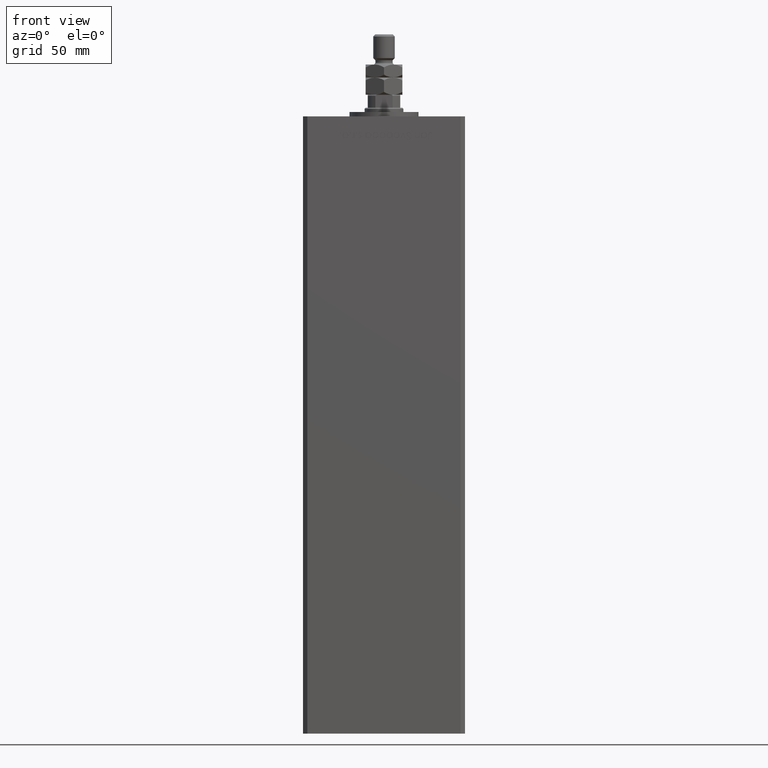
[diagram: clean part render]
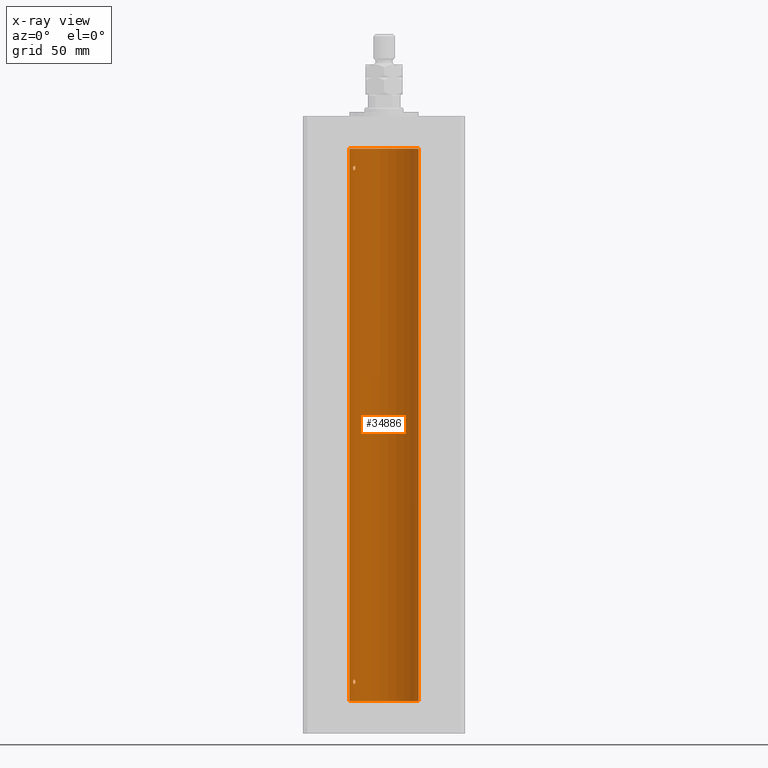
[diagram: x-ray — body ghosted, one internal face saturated and labeled with its STEP entity id]
A machine part, front view, then the same camera in x-ray: the body is ghosted and one INTERNAL B-rep face — a face not visible from any outside direction — is saturated and labeled: STEP entity #34886.
In plain terms, the highlighted cylindrical surface (edge-blend (fillet) strip) has radius 16 mm, axis along (-0, -0, -1).
Its self-contained STEP definition (entity closure, byte-faithful):
#182 = CARTESIAN_POINT ( 'NONE',  ( -13.49759407097374897, 8.592283911330223845, 8.184099152127670251 ) ) ;
#1696 = CARTESIAN_POINT ( 'NONE',  ( -13.98699950016872151, 7.770591669637114229, 246.0184768166483877 ) ) ;
#2011 = CARTESIAN_POINT ( 'NONE',  ( -13.37741691572085934, 8.778212469423014142, 9.640882860227099727 ) ) ;
#2769 = CARTESIAN_POINT ( 'NONE',  ( -13.22875655532295625, 8.999999999999994671, 246.9295656223615936 ) ) ;
#2871 = AXIS2_PLACEMENT_3D ( 'NONE', #30354, #42059, #17594 ) ;
#3478 = VECTOR ( 'NONE', #41444, 1000.000000000000000 ) ;
#3729 = CARTESIAN_POINT ( 'NONE',  ( -14.31660136508399184, 7.144151923086058176, 8.464621795444474017 ) ) ;
#3745 = CARTESIAN_POINT ( 'NONE',  ( -13.24976519864029179, 8.969293778684573226, 247.2815352263351372 ) ) ;
#3988 = CARTESIAN_POINT ( 'NONE',  ( -14.38749456993815556, 6.999999999999997335, 8.857147409635411250 ) ) ;
#4207 = CARTESIAN_POINT ( 'NONE',  ( 16.00000000000000000, 1.959434878635765131E-15, 0.000000000000000000 ) ) ;
#4257 = CARTESIAN_POINT ( 'NONE',  ( -13.77582987033441064, 8.139210687602712824, 8.002110545841816247 ) ) ;
#4402 = B_SPLINE_CURVE_WITH_KNOTS ( 'NONE', 3,
 ( #33077, #24924, #3745, #8099, #33338, #20317, #21370, #41775, #33598, #29260, #42041, #50197, #12963, #53455, #28736, #25458 ),
 .UNSPECIFIED., .F., .F.,
 ( 4, 2, 2, 2, 2, 2, 2, 4 ),
 ( 0.003377672193071779884, 0.003799209865779855366, 0.004220747538487930849, 0.005063822883904134722, 0.005485360556612237093, 0.005906898229320339463, 0.006328435902028442701, 0.006749973574736545072 ),
 .UNSPECIFIED. ) ;
#5250 = VERTEX_POINT ( 'NONE', #19988 ) ;
#5413 = DIRECTION ( 'NONE',  ( 1.000000000000000000, 0.000000000000000000, 0.000000000000000000 ) ) ;
#5865 = CARTESIAN_POINT ( 'NONE',  ( -13.23400746336172951, 8.992294519018086518, 8.857814559023015732 ) ) ;
#6093 = CARTESIAN_POINT ( 'NONE',  ( -13.32457971225032445, 8.857769707964649797, 9.531999662746555302 ) ) ;
#7817 = CARTESIAN_POINT ( 'NONE',  ( -14.38749456993815912, 6.999999999999997335, 9.000000000000000000 ) ) ;
#8099 = CARTESIAN_POINT ( 'NONE',  ( -13.32457971225032622, 8.857769707964648020, 247.5319996627465002 ) ) ;
#8840 = CARTESIAN_POINT ( 'NONE',  ( 16.00000000000000000, 1.959434878635765131E-15, 256.0000000000000000 ) ) ;
#9311 = EDGE_CURVE ( 'NONE', #48910, #5250, #48747, .T. ) ;
#9589 = CARTESIAN_POINT ( 'NONE',  ( -14.38749456993815912, 6.999999999999998224, 247.0000000000000000 ) ) ;
#9936 = CARTESIAN_POINT ( 'NONE',  ( -13.22875655532295447, 8.999999999999996447, 9.000000000000000000 ) ) ;
#10160 = FACE_OUTER_BOUND ( 'NONE', #38788, .T. ) ;
#11259 = VERTEX_POINT ( 'NONE', #4207 ) ;
#11348 = ORIENTED_EDGE ( 'NONE', *, *, #27109, .F. ) ;
#11718 = CARTESIAN_POINT ( 'NONE',  ( -13.56386909142669772, 8.487613976483636691, 246.1182242979961359 ) ) ;
#12125 = VERTEX_POINT ( 'NONE', #53708 ) ;
#12152 = CARTESIAN_POINT ( 'NONE',  ( -14.11621438951177332, 7.533308783217010252, 8.106571071839512754 ) ) ;
#12963 = CARTESIAN_POINT ( 'NONE',  ( -14.31650799088418147, 7.144337649771908438, 247.5355226273736662 ) ) ;
#13121 = AXIS2_PLACEMENT_3D ( 'NONE', #17774, #43328, #42526 ) ;
#13482 = CARTESIAN_POINT ( 'NONE',  ( -13.22875655532295092, 8.999999999999994671, 8.929565622361636201 ) ) ;
#14166 = CIRCLE ( 'NONE', #2871, 16.00000000000000000 ) ;
#14236 = CARTESIAN_POINT ( 'NONE',  ( -13.98878315975729159, 7.767347947480346626, 9.980546143261280534 ) ) ;
#14782 = CARTESIAN_POINT ( 'NONE',  ( -14.17576283486774535, 7.420212263225985261, 9.825253034304354927 ) ) ;
#15008 = CARTESIAN_POINT ( 'NONE',  ( -13.23400746336172240, 8.992294519018086518, 246.8578145590230406 ) ) ;
#15455 = ORIENTED_EDGE ( 'NONE', *, *, #17090, .F. ) ;
#15545 = CARTESIAN_POINT ( 'NONE',  ( -13.37674940693422876, 8.779234808442867077, 246.3602441571267718 ) ) ;
#16752 = CARTESIAN_POINT ( 'NONE',  ( -13.37674940693422521, 8.779234808442870630, 8.360244157126784259 ) ) ;
#17090 = EDGE_CURVE ( 'NONE', #5250, #48910, #20294, .T. ) ;
#17594 = DIRECTION ( 'NONE',  ( 1.000000000000000000, 0.000000000000000000, 0.000000000000000000 ) ) ;
#17774 = CARTESIAN_POINT ( 'NONE',  ( 0.000000000000000000, 0.000000000000000000, 256.0000000000000000 ) ) ;
#17993 = CARTESIAN_POINT ( 'NONE',  ( -14.37250282441143945, 7.031013007322939323, 246.7168569960372793 ) ) ;
#18268 = CARTESIAN_POINT ( 'NONE',  ( -13.91838063522421010, 7.892966471903945624, 245.9981483133087181 ) ) ;
#18395 = ORIENTED_EDGE ( 'NONE', *, *, #9311, .F. ) ;
#18430 = DIRECTION ( 'NONE',  ( -0.000000000000000000, 0.000000000000000000, 1.000000000000000000 ) ) ;
#18885 = CIRCLE ( 'NONE', #45820, 16.00000000000000000 ) ;
#19988 = CARTESIAN_POINT ( 'NONE',  ( -13.22875655532295447, 8.999999999999996447, 9.000000000000000000 ) ) ;
#20294 = B_SPLINE_CURVE_WITH_KNOTS ( 'NONE', 3,
 ( #34888, #51468, #35421, #6093, #2011, #30272, #52006, #35148, #14236, #43051, #14782, #22119, #31076, #39239, #47119, #31346 ),
 .UNSPECIFIED., .F., .F.,
 ( 4, 2, 2, 2, 2, 2, 2, 4 ),
 ( 0.003377672193071777282, 0.003799209865779874882, 0.004220747538487972482, 0.005063822883904168549, 0.005485360556612268318, 0.005906898229320367219, 0.006328435902028466120, 0.006749973574736565889 ),
 .UNSPECIFIED. ) ;
#20303 = CARTESIAN_POINT ( 'NONE',  ( -14.27547848986622014, 7.226527013162185931, 8.352555730181528304 ) ) ;
#20317 = CARTESIAN_POINT ( 'NONE',  ( -13.55800260393081835, 8.498809056167509368, 247.9036434462101681 ) ) ;
#20557 = CARTESIAN_POINT ( 'NONE',  ( -13.98699950016872151, 7.770591669637119558, 8.018476816648481886 ) ) ;
#20834 = CARTESIAN_POINT ( 'NONE',  ( -13.70481462797718031, 8.258098555717506173, 8.025997477291133109 ) ) ;
#20976 = LINE ( 'NONE', #22048, #48810 ) ;
#21370 = CARTESIAN_POINT ( 'NONE',  ( -13.70792461986390798, 8.256614593260307444, 247.9966215356422765 ) ) ;
#22048 = CARTESIAN_POINT ( 'NONE',  ( -16.00000000000000000, 0.000000000000000000, 256.0000000000000000 ) ) ;
#22119 = CARTESIAN_POINT ( 'NONE',  ( -14.27521483392929014, 7.227035590538633869, 9.647859870688195727 ) ) ;
#23679 = VERTEX_POINT ( 'NONE', #30790 ) ;
#23687 = CARTESIAN_POINT ( 'NONE',  ( -13.32426099938365383, 8.858246960865844954, 246.4688748775329827 ) ) ;
#23866 = B_SPLINE_CURVE_WITH_KNOTS ( 'NONE', 3,
 ( #9589, #38931, #17993, #34574, #51161, #30503, #26423, #1696, #18268, #51425, #30766, #11718, #31835, #15545, #23687, #51960, #44088, #15008, #2769, #27237 ),
 .UNSPECIFIED., .F., .F.,
 ( 4, 2, 2, 2, 2, 2, 2, 2, 2, 4 ),
 ( 0.000000000000000000, 0.0004222090241339633240, 0.0008444180482679266480, 0.001266627072401889809, 0.001688836096535853296, 0.002111045120669816783, 0.002533254144803779619, 0.002955463168937742888, 0.003166567681004761603, 0.003377672193071779884 ),
 .UNSPECIFIED. ) ;
#24106 = EDGE_CURVE ( 'NONE', #41253, #23679, #4402, .T. ) ;
#24380 = CARTESIAN_POINT ( 'NONE',  ( -14.37250282441143767, 7.031013007322936659, 8.716856996037261496 ) ) ;
#24924 = CARTESIAN_POINT ( 'NONE',  ( -13.22875655532296157, 8.999999999999994671, 247.1406447609177519 ) ) ;
#24932 = EDGE_LOOP ( 'NONE', ( #50109, #52507 ) ) ;
#25458 = CARTESIAN_POINT ( 'NONE',  ( -14.38749456993815912, 6.999999999999998224, 247.0000000000000000 ) ) ;
#25943 = FACE_BOUND ( 'NONE', #24932, .T. ) ;
#25957 = CARTESIAN_POINT ( 'NONE',  ( -16.00000000000000000, 0.000000000000000000, 256.0000000000000000 ) ) ;
#26423 = CARTESIAN_POINT ( 'NONE',  ( -14.11621438951177687, 7.533308783217008475, 246.1065710718394826 ) ) ;
#26741 = CYLINDRICAL_SURFACE ( 'NONE', #13121, 16.00000000000000000 ) ;
#26862 = CARTESIAN_POINT ( 'NONE',  ( 0.000000000000000000, 0.000000000000000000, 0.000000000000000000 ) ) ;
#27109 = EDGE_CURVE ( 'NONE', #28050, #11259, #49863, .T. ) ;
#27237 = CARTESIAN_POINT ( 'NONE',  ( -13.22875655532295802, 8.999999999999996447, 247.0000000000000000 ) ) ;
#28050 = VERTEX_POINT ( 'NONE', #8840 ) ;
#28736 = CARTESIAN_POINT ( 'NONE',  ( -14.38749456993815734, 6.999999999999997335, 247.1426254415242454 ) ) ;
#29243 = CARTESIAN_POINT ( 'NONE',  ( -13.26838749541400198, 8.941532915076040311, 8.656217793921369363 ) ) ;
#29260 = CARTESIAN_POINT ( 'NONE',  ( -14.11618354197461400, 7.533333301880474231, 247.8932076519334373 ) ) ;
#30272 = CARTESIAN_POINT ( 'NONE',  ( -13.55800260393082546, 8.498809056167521803, 9.903643446210175227 ) ) ;
#30354 = CARTESIAN_POINT ( 'NONE',  ( 0.000000000000000000, 0.000000000000000000, 256.0000000000000000 ) ) ;
#30503 = CARTESIAN_POINT ( 'NONE',  ( -14.17528142432533755, 7.421143801852455368, 246.1739430735387089 ) ) ;
#30766 = CARTESIAN_POINT ( 'NONE',  ( -13.70481462797717676, 8.258098555717509726, 246.0259974772911562 ) ) ;
#30790 = CARTESIAN_POINT ( 'NONE',  ( -14.38749456993815912, 6.999999999999998224, 247.0000000000000000 ) ) ;
#31076 = CARTESIAN_POINT ( 'NONE',  ( -14.31650799088418324, 7.144337649771912879, 9.535522627373689275 ) ) ;
#31346 = CARTESIAN_POINT ( 'NONE',  ( -14.38749456993815912, 6.999999999999997335, 9.000000000000000000 ) ) ;
#31566 = VERTEX_POINT ( 'NONE', #25957 ) ;
#31835 = CARTESIAN_POINT ( 'NONE',  ( -13.49759407097375075, 8.592283911330223845, 246.1840991521276862 ) ) ;
#33077 = CARTESIAN_POINT ( 'NONE',  ( -13.22875655532295802, 8.999999999999996447, 247.0000000000000000 ) ) ;
#33322 = CARTESIAN_POINT ( 'NONE',  ( -13.32426099938365027, 8.858246960865852060, 8.468874877532968526 ) ) ;
#33338 = CARTESIAN_POINT ( 'NONE',  ( -13.37741691572086111, 8.778212469423007036, 247.6408828602271512 ) ) ;
#33598 = CARTESIAN_POINT ( 'NONE',  ( -13.98878315975728803, 7.767347947480344850, 247.9805461432612503 ) ) ;
#34263 = EDGE_CURVE ( 'NONE', #31566, #12125, #20976, .T. ) ;
#34574 = CARTESIAN_POINT ( 'NONE',  ( -14.31660136508398828, 7.144151923086063505, 246.4646217954444580 ) ) ;
#34886 = ADVANCED_FACE ( 'NONE', ( #10160, #50668, #25943 ), #26741, .F. ) ;
#34888 = CARTESIAN_POINT ( 'NONE',  ( -13.22875655532295447, 8.999999999999996447, 9.000000000000000000 ) ) ;
#35107 = EDGE_LOOP ( 'NONE', ( #18395, #15455 ) ) ;
#35148 = CARTESIAN_POINT ( 'NONE',  ( -13.91892506969882959, 7.891973478508852224, 10.00155212263243953 ) ) ;
#35421 = CARTESIAN_POINT ( 'NONE',  ( -13.24976519864029179, 8.969293778684576779, 9.281535226335156707 ) ) ;
#35567 = ORIENTED_EDGE ( 'NONE', *, *, #40595, .T. ) ;
#36718 = ORIENTED_EDGE ( 'NONE', *, *, #51450, .F. ) ;
#37407 = CARTESIAN_POINT ( 'NONE',  ( -13.56386909142669950, 8.487613976483636691, 8.118224297996075478 ) ) ;
#37623 = CARTESIAN_POINT ( 'NONE',  ( 16.00000000000000000, 1.959434878635765131E-15, 256.0000000000000000 ) ) ;
#38087 = EDGE_CURVE ( 'NONE', #23679, #41253, #23866, .T. ) ;
#38788 = EDGE_LOOP ( 'NONE', ( #11348, #35567, #46925, #36718 ) ) ;
#38931 = CARTESIAN_POINT ( 'NONE',  ( -14.38749456993816267, 6.999999999999999112, 246.8571474096355018 ) ) ;
#39239 = CARTESIAN_POINT ( 'NONE',  ( -14.37227256866306213, 7.031482256185707769, 9.284457240976479397 ) ) ;
#40595 = EDGE_CURVE ( 'NONE', #28050, #31566, #14166, .T. ) ;
#41253 = VERTEX_POINT ( 'NONE', #52582 ) ;
#41444 = DIRECTION ( 'NONE',  ( -0.000000000000000000, -0.000000000000000000, -1.000000000000000000 ) ) ;
#41489 = CARTESIAN_POINT ( 'NONE',  ( -13.91838063522420832, 7.892966471903941184, 7.998148313308679036 ) ) ;
#41775 = CARTESIAN_POINT ( 'NONE',  ( -13.91892506969882071, 7.891973478508848672, 248.0015521226323472 ) ) ;
#42041 = CARTESIAN_POINT ( 'NONE',  ( -14.17576283486774891, 7.420212263225987925, 247.8252530343044100 ) ) ;
#42059 = DIRECTION ( 'NONE',  ( -0.000000000000000000, 0.000000000000000000, 1.000000000000000000 ) ) ;
#42526 = DIRECTION ( 'NONE',  ( -1.000000000000000000, 0.000000000000000000, 0.000000000000000000 ) ) ;
#42722 = DIRECTION ( 'NONE',  ( -0.000000000000000000, -0.000000000000000000, -1.000000000000000000 ) ) ;
#43051 = CARTESIAN_POINT ( 'NONE',  ( -14.11618354197461400, 7.533333301880478672, 9.893207651933416003 ) ) ;
#43328 = DIRECTION ( 'NONE',  ( -0.000000000000000000, -0.000000000000000000, -1.000000000000000000 ) ) ;
#44088 = CARTESIAN_POINT ( 'NONE',  ( -13.25390108270225120, 8.962947079338391632, 246.7214357623584533 ) ) ;
#45820 = AXIS2_PLACEMENT_3D ( 'NONE', #26862, #18430, #5413 ) ;
#45824 = CARTESIAN_POINT ( 'NONE',  ( -13.25390108270225298, 8.962947079338388079, 8.721435762358455079 ) ) ;
#46925 = ORIENTED_EDGE ( 'NONE', *, *, #34263, .T. ) ;
#47119 = CARTESIAN_POINT ( 'NONE',  ( -14.38749456993816445, 6.999999999999997335, 9.142625441524202756 ) ) ;
#48747 = B_SPLINE_CURVE_WITH_KNOTS ( 'NONE', 3,
 ( #7817, #3988, #24380, #3729, #20303, #49381, #12152, #20557, #41489, #4257, #20834, #37407, #182, #16752, #33322, #29243, #45824, #5865, #13482, #9936 ),
 .UNSPECIFIED., .F., .F.,
 ( 4, 2, 2, 2, 2, 2, 2, 2, 2, 4 ),
 ( 0.000000000000000000, 0.0004222090241339719976, 0.0008444180482679439952, 0.001266627072401915830, 0.001688836096535887990, 0.002111045120669860151, 0.002533254144803831660, 0.002955463168937803604, 0.003166567681004790660, 0.003377672193071777282 ),
 .UNSPECIFIED. ) ;
#48810 = VECTOR ( 'NONE', #42722, 1000.000000000000000 ) ;
#48910 = VERTEX_POINT ( 'NONE', #48949 ) ;
#48949 = CARTESIAN_POINT ( 'NONE',  ( -14.38749456993815912, 6.999999999999997335, 9.000000000000000000 ) ) ;
#49381 = CARTESIAN_POINT ( 'NONE',  ( -14.17528142432533755, 7.421143801852455368, 8.173943073538659121 ) ) ;
#49863 = LINE ( 'NONE', #37623, #3478 ) ;
#50109 = ORIENTED_EDGE ( 'NONE', *, *, #38087, .F. ) ;
#50197 = CARTESIAN_POINT ( 'NONE',  ( -14.27521483392928836, 7.227035590538638310, 247.6478598706881940 ) ) ;
#50668 = FACE_BOUND ( 'NONE', #35107, .T. ) ;
#51161 = CARTESIAN_POINT ( 'NONE',  ( -14.27547848986622370, 7.226527013162184154, 246.3525557301815070 ) ) ;
#51425 = CARTESIAN_POINT ( 'NONE',  ( -13.77582987033440709, 8.139210687602719929, 246.0021105458419015 ) ) ;
#51450 = EDGE_CURVE ( 'NONE', #11259, #12125, #18885, .T. ) ;
#51468 = CARTESIAN_POINT ( 'NONE',  ( -13.22875655532295447, 8.999999999999996447, 9.140644760917734146 ) ) ;
#51960 = CARTESIAN_POINT ( 'NONE',  ( -13.26838749541400908, 8.941532915076043864, 246.6562177939213711 ) ) ;
#52006 = CARTESIAN_POINT ( 'NONE',  ( -13.70792461986390620, 8.256614593260307444, 9.996621535642271184 ) ) ;
#52507 = ORIENTED_EDGE ( 'NONE', *, *, #24106, .F. ) ;
#52582 = CARTESIAN_POINT ( 'NONE',  ( -13.22875655532295802, 8.999999999999996447, 247.0000000000000000 ) ) ;
#53455 = CARTESIAN_POINT ( 'NONE',  ( -14.37227256866306213, 7.031482256185711321, 247.2844572409765362 ) ) ;
#53708 = CARTESIAN_POINT ( 'NONE',  ( -16.00000000000000000, 0.000000000000000000, 0.000000000000000000 ) ) ;